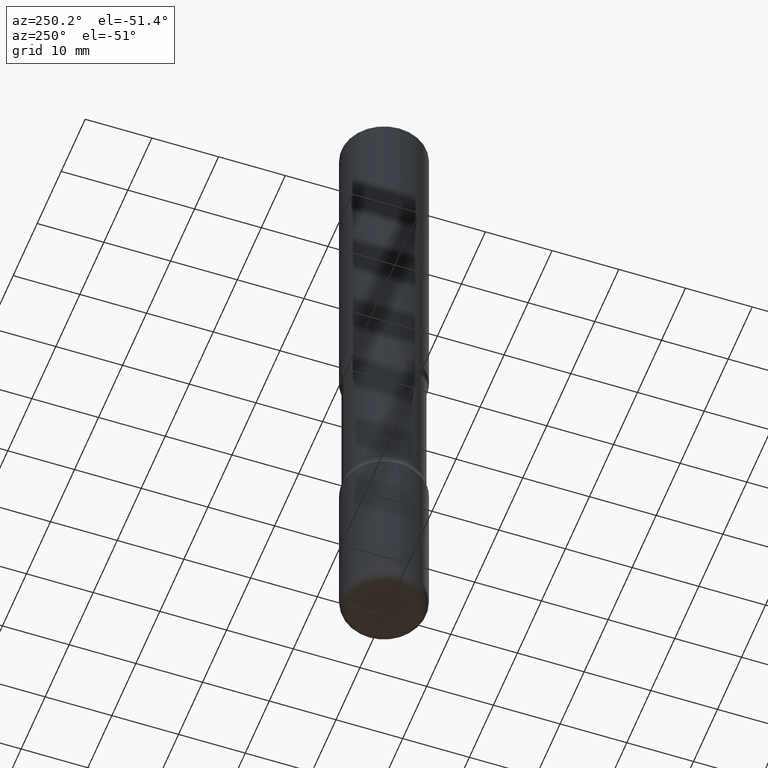
[diagram: clean part render]
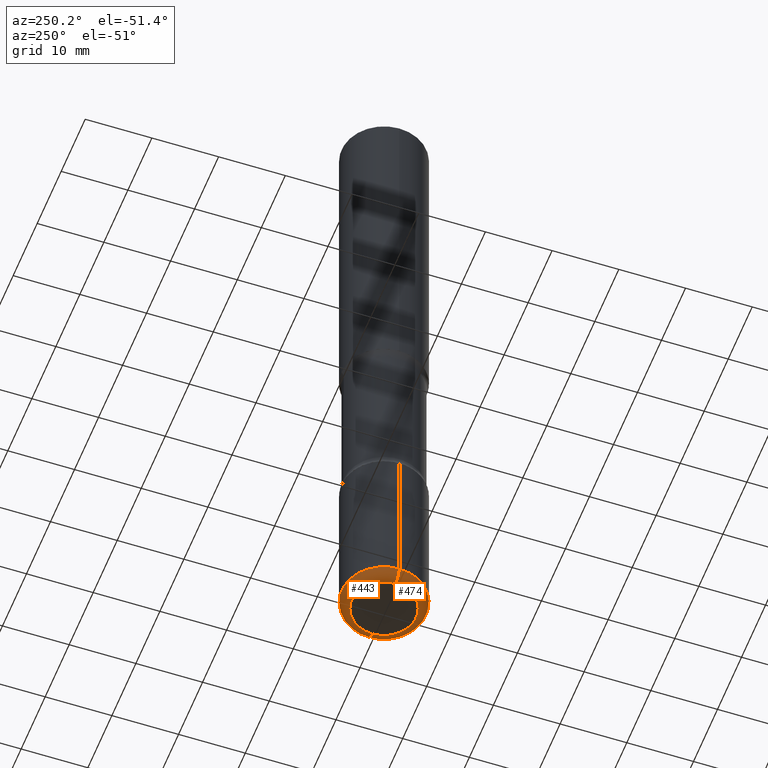
[diagram: same view with one multi-face feature highlighted, each face labeled with its STEP entity id]
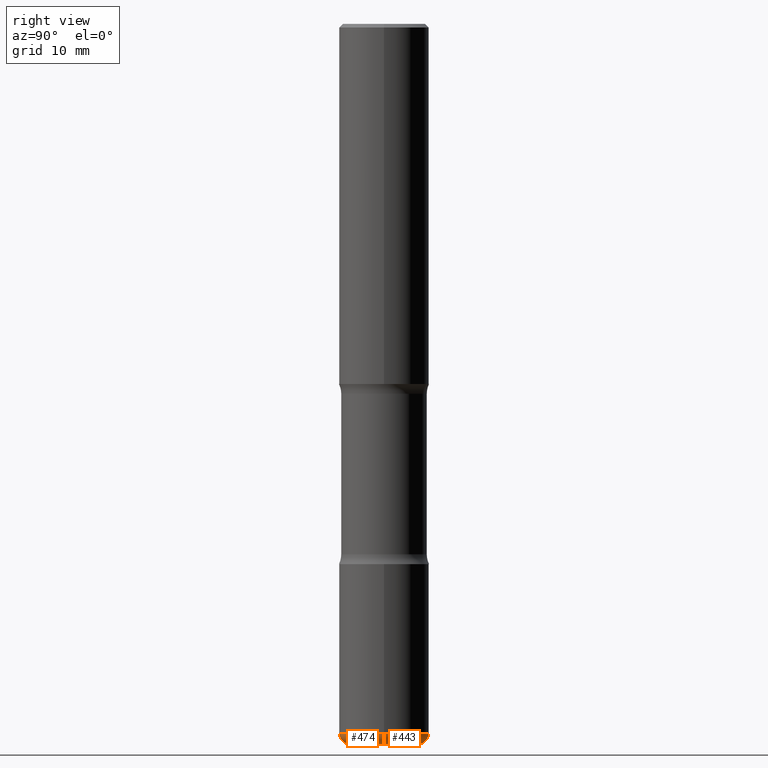
[diagram: same view with one multi-face feature highlighted, each face labeled with its STEP entity id]
A machine part, auxiliary view. The highlighted faces form ONE feature: a constant-radius fillet chain: 2 tangent blend faces with common blend radius 1.524 mm. The faces share edges in the B-rep.
A second angle (right view) of the same feature is appended — it is thin or edge-on in the first view.
Their STEP definitions:
[1] entity #443 (Torus):
#3 = DIRECTION ( 'NONE',  ( -1.000000000000000000, 7.105427357600993970E-15, 0.000000000000000000 ) ) ;
#28 = DIRECTION ( 'NONE',  ( -2.445468806185136597E-29, 3.491481338843145583E-15, 1.000000000000000000 ) ) ;
#84 = AXIS2_PLACEMENT_3D ( 'NONE', #270, #527, #3 ) ;
#92 = AXIS2_PLACEMENT_3D ( 'NONE', #265, #404, #177 ) ;
#98 = DIRECTION ( 'NONE',  ( -2.445468806185136597E-29, 3.491481338843145583E-15, 1.000000000000000000 ) ) ;
#113 = CARTESIAN_POINT ( 'NONE',  ( 0.1900000000000003630, -1.529268826413297711E-14, -4.000000000000000000 ) ) ;
#124 = CARTESIAN_POINT ( 'NONE',  ( 0.1900000000000003630, -1.508319938380238721E-14, -3.939999999999999947 ) ) ;
#126 = ORIENTED_EDGE ( 'NONE', *, *, #228, .F. ) ;
#129 = CARTESIAN_POINT ( 'NONE',  ( 9.781875224740546387E-29, -1.396592535537258233E-14, -4.000000000000000000 ) ) ;
#140 = CARTESIAN_POINT ( 'NONE',  ( 0.2500000000000003331, -1.550217714446356385E-14, -3.939999999999999947 ) ) ;
#160 = DIRECTION ( 'NONE',  ( 1.000000000000000000, -6.982962677686270655E-15, 0.000000000000000000 ) ) ;
#164 = EDGE_CURVE ( 'NONE', #555, #353, #479, .T. ) ;
#177 = DIRECTION ( 'NONE',  ( 1.000000000000000000, -6.982962677686269077E-15, 4.883557194083113462E-29 ) ) ;
#197 = DIRECTION ( 'NONE',  ( -6.982962677686266711E-15, -1.000000000000000000, 3.491481338843145583E-15 ) ) ;
#224 = CIRCLE ( 'NONE', #322, 0.1900000000000003630 ) ;
#228 = EDGE_CURVE ( 'NONE', #353, #344, #357, .T. ) ;
#246 = CARTESIAN_POINT ( 'NONE',  ( 9.635147096369438236E-29, -1.375643647504199401E-14, -3.939999999999999947 ) ) ;
#265 = CARTESIAN_POINT ( 'NONE',  ( 9.635147096369438236E-29, -1.375643647504199401E-14, -3.939999999999999947 ) ) ;
#270 = CARTESIAN_POINT ( 'NONE',  ( -0.1900000000000003630, -1.240640527709780088E-14, -3.939999999999999947 ) ) ;
#286 = CIRCLE ( 'NONE', #84, 0.05999999999999997696 ) ;
#289 = CARTESIAN_POINT ( 'NONE',  ( -0.1900000000000003630, -1.229798689653506559E-14, -4.000000000000000000 ) ) ;
#292 = EDGE_CURVE ( 'NONE', #516, #344, #286, .T. ) ;
#314 = FACE_OUTER_BOUND ( 'NONE', #384, .T. ) ;
#322 = AXIS2_PLACEMENT_3D ( 'NONE', #129, #98, #517 ) ;
#335 = AXIS2_PLACEMENT_3D ( 'NONE', #124, #197, #160 ) ;
#341 = DIRECTION ( 'NONE',  ( 1.000000000000000000, -6.982962677686267499E-15, 0.000000000000000000 ) ) ;
#344 = VERTEX_POINT ( 'NONE', #438 ) ;
#353 = VERTEX_POINT ( 'NONE', #140 ) ;
#356 = ORIENTED_EDGE ( 'NONE', *, *, #434, .T. ) ;
#357 = CIRCLE ( 'NONE', #428, 0.2500000000000003886 ) ;
#383 = ORIENTED_EDGE ( 'NONE', *, *, #164, .F. ) ;
#384 = EDGE_LOOP ( 'NONE', ( #356, #431, #126, #383 ) ) ;
#404 = DIRECTION ( 'NONE',  ( -2.445468806185136597E-29, 3.491481338843145583E-15, 1.000000000000000000 ) ) ;
#428 = AXIS2_PLACEMENT_3D ( 'NONE', #246, #28, #341 ) ;
#431 = ORIENTED_EDGE ( 'NONE', *, *, #292, .T. ) ;
#434 = EDGE_CURVE ( 'NONE', #555, #516, #224, .T. ) ;
#438 = CARTESIAN_POINT ( 'NONE',  ( -0.2500000000000003331, -1.198007963564174197E-14, -3.939999999999999947 ) ) ;
#443 = ADVANCED_FACE ( 'NONE', ( #314 ), #540, .T. ) ;
#479 = CIRCLE ( 'NONE', #335, 0.05999999999999997696 ) ;
#516 = VERTEX_POINT ( 'NONE', #289 ) ;
#517 = DIRECTION ( 'NONE',  ( 1.000000000000000000, -6.982962677686269077E-15, 0.000000000000000000 ) ) ;
#527 = DIRECTION ( 'NONE',  ( 7.105427357601001859E-15, 1.000000000000000000, -3.491481338843145583E-15 ) ) ;
#540 = TOROIDAL_SURFACE ( 'NONE', #92, 0.1900000000000003630, 0.05999999999999995615 ) ;
#555 = VERTEX_POINT ( 'NONE', #113 ) ;
[2] entity #474 (Torus):
#3 = DIRECTION ( 'NONE',  ( -1.000000000000000000, 7.105427357600993970E-15, 0.000000000000000000 ) ) ;
#34 = EDGE_CURVE ( 'NONE', #516, #555, #178, .T. ) ;
#56 = CARTESIAN_POINT ( 'NONE',  ( 9.635147096369438236E-29, -1.375643647504199401E-14, -3.939999999999999947 ) ) ;
#67 = CARTESIAN_POINT ( 'NONE',  ( 9.635147096369438236E-29, -1.375643647504199401E-14, -3.939999999999999947 ) ) ;
#76 = ORIENTED_EDGE ( 'NONE', *, *, #292, .F. ) ;
#84 = AXIS2_PLACEMENT_3D ( 'NONE', #270, #527, #3 ) ;
#87 = ORIENTED_EDGE ( 'NONE', *, *, #426, .F. ) ;
#113 = CARTESIAN_POINT ( 'NONE',  ( 0.1900000000000003630, -1.529268826413297711E-14, -4.000000000000000000 ) ) ;
#124 = CARTESIAN_POINT ( 'NONE',  ( 0.1900000000000003630, -1.508319938380238721E-14, -3.939999999999999947 ) ) ;
#137 = ORIENTED_EDGE ( 'NONE', *, *, #164, .T. ) ;
#140 = CARTESIAN_POINT ( 'NONE',  ( 0.2500000000000003331, -1.550217714446356385E-14, -3.939999999999999947 ) ) ;
#160 = DIRECTION ( 'NONE',  ( 1.000000000000000000, -6.982962677686270655E-15, 0.000000000000000000 ) ) ;
#164 = EDGE_CURVE ( 'NONE', #555, #353, #479, .T. ) ;
#178 = CIRCLE ( 'NONE', #402, 0.1900000000000003630 ) ;
#197 = DIRECTION ( 'NONE',  ( -6.982962677686266711E-15, -1.000000000000000000, 3.491481338843145583E-15 ) ) ;
#217 = DIRECTION ( 'NONE',  ( -2.445468806185136597E-29, 3.491481338843145583E-15, 1.000000000000000000 ) ) ;
#262 = TOROIDAL_SURFACE ( 'NONE', #345, 0.1900000000000003630, 0.05999999999999995615 ) ;
#270 = CARTESIAN_POINT ( 'NONE',  ( -0.1900000000000003630, -1.240640527709780088E-14, -3.939999999999999947 ) ) ;
#286 = CIRCLE ( 'NONE', #84, 0.05999999999999997696 ) ;
#289 = CARTESIAN_POINT ( 'NONE',  ( -0.1900000000000003630, -1.229798689653506559E-14, -4.000000000000000000 ) ) ;
#292 = EDGE_CURVE ( 'NONE', #516, #344, #286, .T. ) ;
#294 = ORIENTED_EDGE ( 'NONE', *, *, #34, .T. ) ;
#319 = DIRECTION ( 'NONE',  ( 1.000000000000000000, -6.982962677686267499E-15, 0.000000000000000000 ) ) ;
#335 = AXIS2_PLACEMENT_3D ( 'NONE', #124, #197, #160 ) ;
#336 = AXIS2_PLACEMENT_3D ( 'NONE', #56, #217, #319 ) ;
#339 = EDGE_LOOP ( 'NONE', ( #76, #294, #137, #87 ) ) ;
#344 = VERTEX_POINT ( 'NONE', #438 ) ;
#345 = AXIS2_PLACEMENT_3D ( 'NONE', #67, #372, #538 ) ;
#347 = CIRCLE ( 'NONE', #336, 0.2500000000000003886 ) ;
#353 = VERTEX_POINT ( 'NONE', #140 ) ;
#371 = CARTESIAN_POINT ( 'NONE',  ( 9.781875224740546387E-29, -1.396592535537258233E-14, -4.000000000000000000 ) ) ;
#372 = DIRECTION ( 'NONE',  ( -2.445468806185136597E-29, 3.491481338843145583E-15, 1.000000000000000000 ) ) ;
#402 = AXIS2_PLACEMENT_3D ( 'NONE', #371, #536, #534 ) ;
#426 = EDGE_CURVE ( 'NONE', #344, #353, #347, .T. ) ;
#438 = CARTESIAN_POINT ( 'NONE',  ( -0.2500000000000003331, -1.198007963564174197E-14, -3.939999999999999947 ) ) ;
#474 = ADVANCED_FACE ( 'NONE', ( #483 ), #262, .T. ) ;
#479 = CIRCLE ( 'NONE', #335, 0.05999999999999997696 ) ;
#483 = FACE_OUTER_BOUND ( 'NONE', #339, .T. ) ;
#516 = VERTEX_POINT ( 'NONE', #289 ) ;
#527 = DIRECTION ( 'NONE',  ( 7.105427357601001859E-15, 1.000000000000000000, -3.491481338843145583E-15 ) ) ;
#534 = DIRECTION ( 'NONE',  ( 1.000000000000000000, -6.982962677686269077E-15, 0.000000000000000000 ) ) ;
#536 = DIRECTION ( 'NONE',  ( -2.445468806185136597E-29, 3.491481338843145583E-15, 1.000000000000000000 ) ) ;
#538 = DIRECTION ( 'NONE',  ( 1.000000000000000000, -6.982962677686269077E-15, 4.883557194083113462E-29 ) ) ;
#555 = VERTEX_POINT ( 'NONE', #113 ) ;